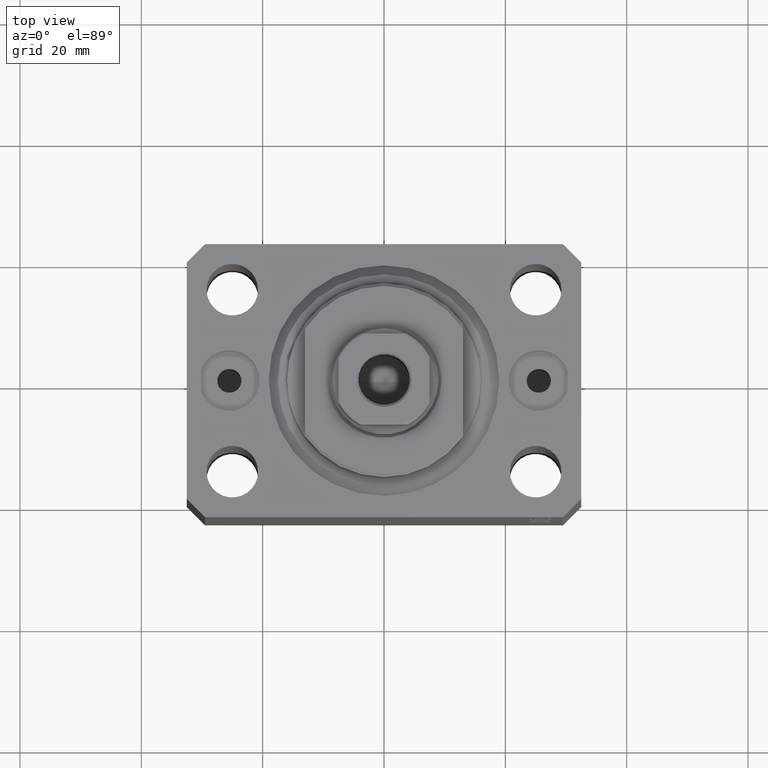
[diagram: clean part render]
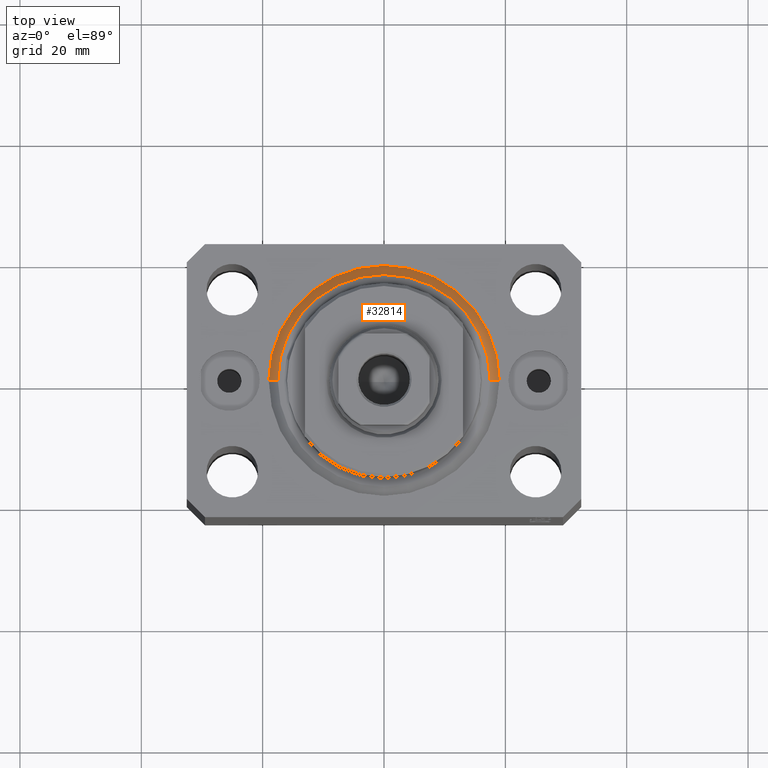
[diagram: same view with one face highlighted and labeled with its STEP entity id]
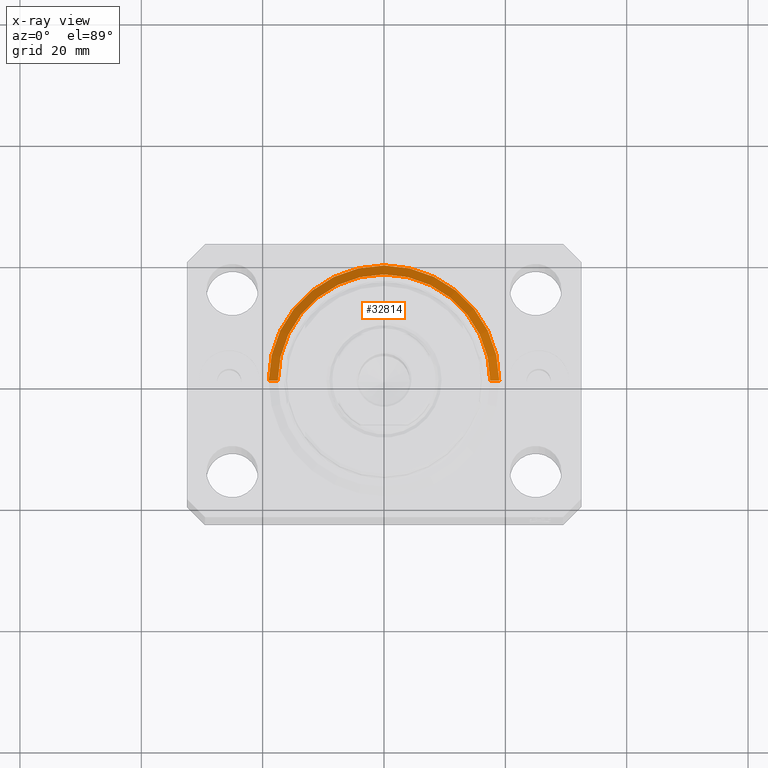
[diagram: x-ray of the same camera — body ghosted, the highlighted face saturated]
A machine part, top view. The second image highlights one B-rep face of the part: STEP entity #32814.
The next image is the same camera in x-ray: the body ghosted, the highlighted face saturated — about 0% of this face is hidden behind the body in this view.
In plain terms, the highlighted conical surface has half-angle 45 deg.
Its self-contained STEP definition (entity closure, byte-faithful):
#641 = VERTEX_POINT ( 'NONE', #23910 ) ;
#2147 = DIRECTION ( 'NONE',  ( -0.000000000000000000, -0.000000000000000000, 1.000000000000000000 ) ) ;
#3311 = AXIS2_PLACEMENT_3D ( 'NONE', #29982, #12852, #9483 ) ;
#4686 = CARTESIAN_POINT ( 'NONE',  ( -19.00000000000000000, 2.326828918379970970E-15, 1.500000000000004885 ) ) ;
#5735 = VERTEX_POINT ( 'NONE', #24248 ) ;
#6257 = AXIS2_PLACEMENT_3D ( 'NONE', #38199, #9701, #37153 ) ;
#6892 = VERTEX_POINT ( 'NONE', #42338 ) ;
#7687 = CIRCLE ( 'NONE', #6257, 19.00000000000000000 ) ;
#8269 = FACE_OUTER_BOUND ( 'NONE', #43026, .T. ) ;
#9393 = VERTEX_POINT ( 'NONE', #13878 ) ;
#9483 = DIRECTION ( 'NONE',  ( 1.000000000000000000, 0.000000000000000000, 0.000000000000000000 ) ) ;
#9701 = DIRECTION ( 'NONE',  ( -0.000000000000000000, -0.000000000000000000, 1.000000000000000000 ) ) ;
#11681 = VECTOR ( 'NONE', #36147, 1000.000000000000000 ) ;
#12852 = DIRECTION ( 'NONE',  ( -0.000000000000000000, -0.000000000000000000, -1.000000000000000000 ) ) ;
#13611 = EDGE_CURVE ( 'NONE', #9393, #6892, #25804, .T. ) ;
#13878 = CARTESIAN_POINT ( 'NONE',  ( -17.49999999999999289, 2.234980408443919215E-15, 0.000000000000000000 ) ) ;
#16192 = VECTOR ( 'NONE', #26333, 1000.000000000000000 ) ;
#19234 = CARTESIAN_POINT ( 'NONE',  ( 0.000000000000000000, 0.000000000000000000, 1.500000000000004885 ) ) ;
#20892 = ORIENTED_EDGE ( 'NONE', *, *, #27453, .F. ) ;
#21364 = AXIS2_PLACEMENT_3D ( 'NONE', #19234, #2147, #39078 ) ;
#23347 = EDGE_CURVE ( 'NONE', #9393, #641, #23415, .T. ) ;
#23415 = CIRCLE ( 'NONE', #3311, 17.49999999999999289 ) ;
#23535 = ORIENTED_EDGE ( 'NONE', *, *, #31310, .F. ) ;
#23910 = CARTESIAN_POINT ( 'NONE',  ( 17.49999999999999289, 0.000000000000000000, 0.000000000000000000 ) ) ;
#24248 = CARTESIAN_POINT ( 'NONE',  ( 19.00000000000000000, 2.326828918379970970E-15, 1.500000000000004885 ) ) ;
#25804 = LINE ( 'NONE', #4686, #11681 ) ;
#26333 = DIRECTION ( 'NONE',  ( 0.7071067811865483499, 0.000000000000000000, 0.7071067811865467956 ) ) ;
#27453 = EDGE_CURVE ( 'NONE', #641, #5735, #36889, .T. ) ;
#29347 = ORIENTED_EDGE ( 'NONE', *, *, #23347, .F. ) ;
#29982 = CARTESIAN_POINT ( 'NONE',  ( 0.000000000000000000, 0.000000000000000000, 0.000000000000000000 ) ) ;
#31310 = EDGE_CURVE ( 'NONE', #5735, #6892, #7687, .T. ) ;
#32814 = ADVANCED_FACE ( 'NONE', ( #8269 ), #40763, .T. ) ;
#36147 = DIRECTION ( 'NONE',  ( -0.7071067811865483499, 8.659560562354943952E-17, 0.7071067811865467956 ) ) ;
#36434 = CARTESIAN_POINT ( 'NONE',  ( 19.00000000000000000, 0.000000000000000000, 1.500000000000004885 ) ) ;
#36889 = LINE ( 'NONE', #36434, #16192 ) ;
#37153 = DIRECTION ( 'NONE',  ( 1.000000000000000000, 0.000000000000000000, 0.000000000000000000 ) ) ;
#38199 = CARTESIAN_POINT ( 'NONE',  ( 0.000000000000000000, 0.000000000000000000, 1.500000000000004885 ) ) ;
#39078 = DIRECTION ( 'NONE',  ( 1.000000000000000000, 0.000000000000000000, 0.000000000000000000 ) ) ;
#40763 = CONICAL_SURFACE ( 'NONE', #21364, 19.00000000000000000, 0.7853981633974492782 ) ;
#42255 = ORIENTED_EDGE ( 'NONE', *, *, #13611, .T. ) ;
#42338 = CARTESIAN_POINT ( 'NONE',  ( -19.00000000000000000, 0.000000000000000000, 1.500000000000004885 ) ) ;
#43026 = EDGE_LOOP ( 'NONE', ( #29347, #42255, #23535, #20892 ) ) ;